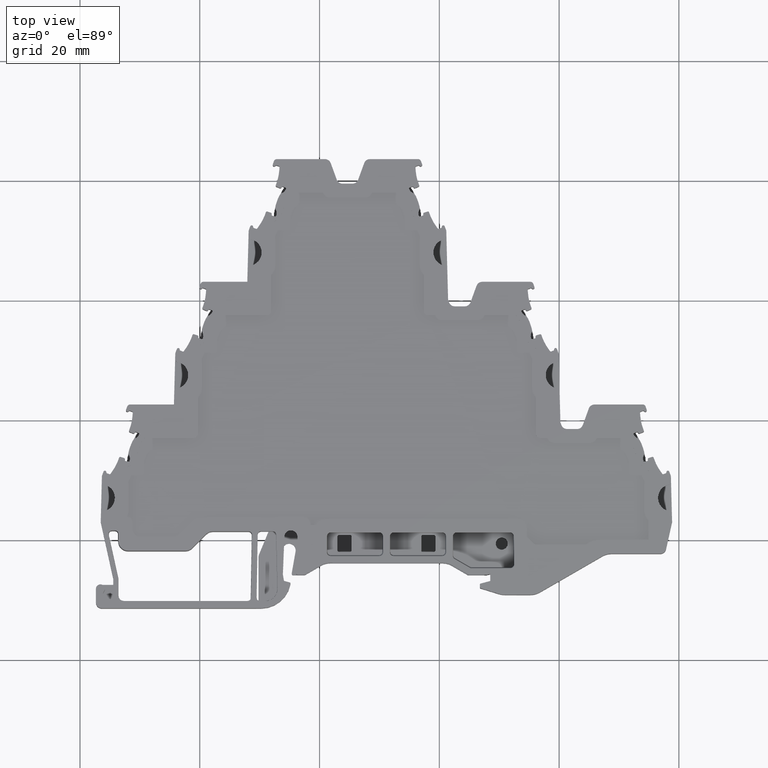
[diagram: clean part render]
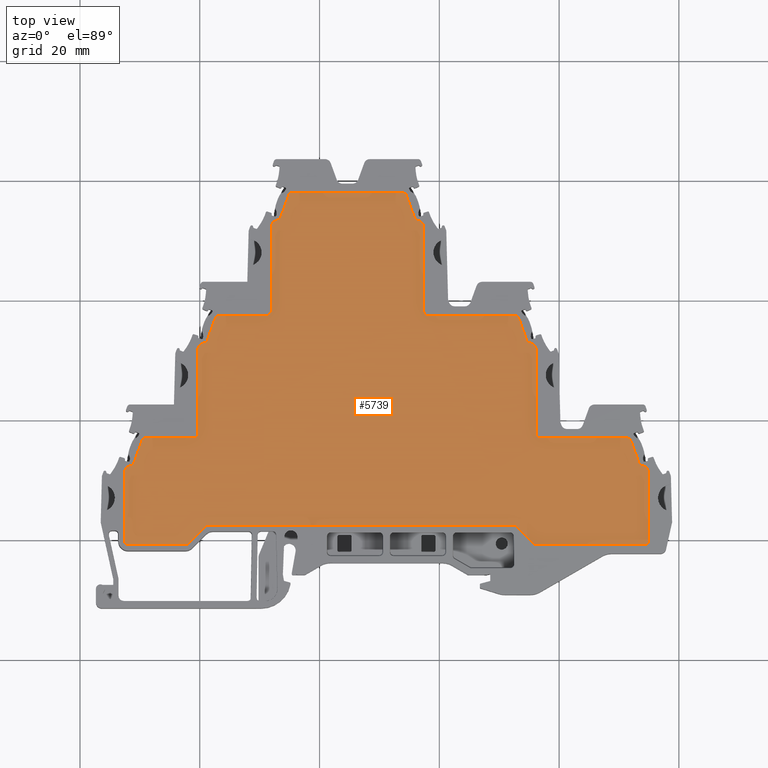
[diagram: same view with one face highlighted and labeled with its STEP entity id]
A machine part, top view. The second image highlights one B-rep face of the part: STEP entity #5739.
In plain terms, the highlighted planar face has unit normal (0, 0, 1).
Its self-contained STEP definition (entity closure, byte-faithful):
#59 = DIRECTION ( 'NONE',  ( 1.000000000000000000, 0.000000000000000000, 0.000000000000000000 ) ) ;
#106 = EDGE_CURVE ( 'NONE', #9751, #30691, #5335, .T. ) ;
#178 = CARTESIAN_POINT ( 'NONE',  ( 1228.977222510818137, 772.8129094211374195, 5.799999999999999822 ) ) ;
#241 = CARTESIAN_POINT ( 'NONE',  ( 1252.986340739400703, 813.3990832987889235, 5.799999999999999822 ) ) ;
#445 = CARTESIAN_POINT ( 'NONE',  ( 1237.604953167799977, 759.8020790783040184, 5.799999999999999822 ) ) ;
#509 = CIRCLE ( 'NONE', #27018, 0.6061088074535980752 ) ;
#634 = DIRECTION ( 'NONE',  ( 1.000000000000000000, -0.000000000000000000, -0.000000000000000000 ) ) ;
#737 = VECTOR ( 'NONE', #32637, 1000.000000000000000 ) ;
#783 = VERTEX_POINT ( 'NONE', #31307 ) ;
#800 = DIRECTION ( 'NONE',  ( 0.000000000000000000, 0.000000000000000000, 1.000000000000000000 ) ) ;
#802 = CARTESIAN_POINT ( 'NONE',  ( 1296.156833746017355, 777.6166814765280151, 5.799999999999999822 ) ) ;
#1189 = CARTESIAN_POINT ( 'NONE',  ( 1292.447555808184006, 762.4437863707485121, 5.799999999999999822 ) ) ;
#1218 = CIRCLE ( 'NONE', #13842, 0.5938911925462697639 ) ;
#1227 = AXIS2_PLACEMENT_3D ( 'NONE', #7390, #8133, #16265 ) ;
#1332 = CARTESIAN_POINT ( 'NONE',  ( 1277.406816198423257, 812.2007317726360043, 5.799999999999999822 ) ) ;
#1394 = EDGE_CURVE ( 'NONE', #4185, #26352, #25839, .T. ) ;
#1422 = EDGE_CURVE ( 'NONE', #22260, #25368, #29730, .T. ) ;
#1531 = CARTESIAN_POINT ( 'NONE',  ( 1228.486396052494456, 772.4259606854730009, 5.799999999999999822 ) ) ;
#1644 = VERTEX_POINT ( 'NONE', #28568 ) ;
#1660 = EDGE_CURVE ( 'NONE', #30691, #31961, #34407, .T. ) ;
#1951 = AXIS2_PLACEMENT_3D ( 'NONE', #3254, #3643, #23428 ) ;
#1979 = ORIENTED_EDGE ( 'NONE', *, *, #6525, .T. ) ;
#2184 = EDGE_CURVE ( 'NONE', #24756, #5466, #24228, .T. ) ;
#2193 = EDGE_CURVE ( 'NONE', #25309, #24476, #23026, .T. ) ;
#2236 = EDGE_CURVE ( 'NONE', #31854, #3433, #12208, .T. ) ;
#2375 = VERTEX_POINT ( 'NONE', #15868 ) ;
#2425 = EDGE_CURVE ( 'NONE', #21752, #16617, #28694, .T. ) ;
#2680 = CARTESIAN_POINT ( 'NONE',  ( 1293.209353774605688, 797.1105442044454321, 5.799999999999999822 ) ) ;
#2753 = CARTESIAN_POINT ( 'NONE',  ( 1253.477167197724384, 813.7860320344544789, 5.799999999999999822 ) ) ;
#2810 = CARTESIAN_POINT ( 'NONE',  ( 1275.846453533595650, 813.7860320344544789, 5.799999999999999822 ) ) ;
#2823 = ORIENTED_EDGE ( 'NONE', *, *, #28218, .T. ) ;
#2885 = DIRECTION ( 'NONE',  ( 0.7071067811864930608, -0.7071067811866019737, -0.000000000000000000 ) ) ;
#2919 = LINE ( 'NONE', #8572, #11068 ) ;
#3069 = LINE ( 'NONE', #31889, #5186 ) ;
#3230 = DIRECTION ( 'NONE',  ( -0.000000000000000000, -0.000000000000000000, -1.000000000000000000 ) ) ;
#3244 = VERTEX_POINT ( 'NONE', #36995 ) ;
#3254 = CARTESIAN_POINT ( 'NONE',  ( 1240.669119683108192, 793.5025934786519883, 5.799999999999999822 ) ) ;
#3268 = ORIENTED_EDGE ( 'NONE', *, *, #33676, .T. ) ;
#3288 = CIRCLE ( 'NONE', #34561, 0.6061088074533760306 ) ;
#3320 = VERTEX_POINT ( 'NONE', #9121 ) ;
#3433 = VERTEX_POINT ( 'NONE', #23796 ) ;
#3467 = DIRECTION ( 'NONE',  ( 1.000000000000000000, 0.000000000000000000, 0.000000000000000000 ) ) ;
#3643 = DIRECTION ( 'NONE',  ( -0.000000000000000000, -0.000000000000000000, -1.000000000000000000 ) ) ;
#3781 = DIRECTION ( 'NONE',  ( -0.000000000000000000, -0.000000000000000000, -1.000000000000000000 ) ) ;
#3783 = EDGE_CURVE ( 'NONE', #3244, #6837, #1218, .T. ) ;
#3798 = LINE ( 'NONE', #1332, #4991 ) ;
#3974 = LINE ( 'NONE', #23207, #17272 ) ;
#4154 = CARTESIAN_POINT ( 'NONE',  ( 1278.000707390953949, 797.5093515906395396, 5.799999999999999822 ) ) ;
#4185 = VERTEX_POINT ( 'NONE', #11299 ) ;
#4278 = CARTESIAN_POINT ( 'NONE',  ( 1230.364339817401969, 776.6239828977874140, 5.800000000000000711 ) ) ;
#4319 = VECTOR ( 'NONE', #27441, 1000.000000000000000 ) ;
#4455 = CARTESIAN_POINT ( 'NONE',  ( 1292.447555808184006, 762.4437863707485121, 5.799999999999999822 ) ) ;
#4471 = EDGE_CURVE ( 'NONE', #24476, #31854, #16319, .T. ) ;
#4569 = ORIENTED_EDGE ( 'NONE', *, *, #24828, .T. ) ;
#4622 = CARTESIAN_POINT ( 'NONE',  ( 1255.433840478042157, 817.3898040898441195, 5.799999999999999822 ) ) ;
#4710 = ORIENTED_EDGE ( 'NONE', *, *, #22227, .T. ) ;
#4987 = CARTESIAN_POINT ( 'NONE',  ( 1296.750724938563962, 777.6166814765280151, 5.799999999999999822 ) ) ;
#4991 = VECTOR ( 'NONE', #26792, 1000.000000000000000 ) ;
#5076 = ORIENTED_EDGE ( 'NONE', *, *, #1660, .T. ) ;
#5186 = VECTOR ( 'NONE', #2885, 1000.000000000000114 ) ;
#5335 = CIRCLE ( 'NONE', #20369, 0.6061088074533760306 ) ;
#5365 = DIRECTION ( 'NONE',  ( -0.000000000000000000, -0.000000000000000000, -1.000000000000000000 ) ) ;
#5398 = LINE ( 'NONE', #22338, #13110 ) ;
#5418 = CARTESIAN_POINT ( 'NONE',  ( 1276.200707390969910, 812.2007317726319116, 5.799999999999999822 ) ) ;
#5422 = VERTEX_POINT ( 'NONE', #31427 ) ;
#5437 = ORIENTED_EDGE ( 'NONE', *, *, #2236, .T. ) ;
#5448 = CARTESIAN_POINT ( 'NONE',  ( 1253.477167197724384, 813.7860320344544789, 5.799999999999999822 ) ) ;
#5466 = VERTEX_POINT ( 'NONE', #25968 ) ;
#5739 = ADVANCED_FACE ( 'NONE', ( #21399 ), #32899, .T. ) ;
#5770 = CARTESIAN_POINT ( 'NONE',  ( 1296.156833746017355, 791.7141704659779862, 5.799999999999999822 ) ) ;
#5895 = EDGE_LOOP ( 'NONE', ( #31200, #25181, #36941, #26330, #36713, #15459, #5437, #23632, #32617, #12989, #8518, #28811, #19432, #33913, #26450, #14534, #31669, #31105, #31263, #19804, #27427, #1979, #36953, #20396, #30875, #15093, #31647, #9622, #5076, #3268, #14727, #23138, #26245, #10768, #27139, #35426, #6864, #17334, #4710, #21304, #32856, #27022, #4569, #21071, #7153, #10405, #12497, #2823, #13903, #6597 ) ) ;
#5904 = CARTESIAN_POINT ( 'NONE',  ( 1296.192428182929689, 759.8020790783029952, 5.799999999999999822 ) ) ;
#5975 = AXIS2_PLACEMENT_3D ( 'NONE', #34033, #20090, #19349 ) ;
#6043 = EDGE_CURVE ( 'NONE', #783, #19958, #14823, .T. ) ;
#6096 = LINE ( 'NONE', #6474, #9913 ) ;
#6401 = EDGE_CURVE ( 'NONE', #16617, #25309, #3069, .T. ) ;
#6474 = CARTESIAN_POINT ( 'NONE',  ( 1283.213212084918950, 793.5460292671530169, 5.799999999999999822 ) ) ;
#6525 = EDGE_CURVE ( 'NONE', #28316, #14440, #3798, .T. ) ;
#6597 = ORIENTED_EDGE ( 'NONE', *, *, #7241, .T. ) ;
#6616 = VERTEX_POINT ( 'NONE', #10019 ) ;
#6682 = DIRECTION ( 'NONE',  ( 1.000000000000000000, 0.000000000000000000, 0.000000000000000000 ) ) ;
#6771 = DIRECTION ( 'NONE',  ( 1.000000000000000000, -1.869404763871029817E-13, 0.000000000000000000 ) ) ;
#6780 = AXIS2_PLACEMENT_3D ( 'NONE', #31721, #800, #59 ) ;
#6837 = VERTEX_POINT ( 'NONE', #14518 ) ;
#6840 = CARTESIAN_POINT ( 'NONE',  ( 1228.622968653480029, 771.2276091593529372, 5.799999999999999822 ) ) ;
#6864 = ORIENTED_EDGE ( 'NONE', *, *, #2184, .T. ) ;
#6915 = DIRECTION ( 'NONE',  ( -3.886814937260330878E-13, -1.000000000000000000, -0.000000000000000000 ) ) ;
#6989 = VERTEX_POINT ( 'NONE', #23918 ) ;
#7100 = DIRECTION ( 'NONE',  ( 0.000000000000000000, 0.000000000000000000, 1.000000000000000000 ) ) ;
#7153 = ORIENTED_EDGE ( 'NONE', *, *, #28068, .T. ) ;
#7236 = CARTESIAN_POINT ( 'NONE',  ( 1276.337279991911601, 813.3990832987279873, 5.799999999999999822 ) ) ;
#7241 = EDGE_CURVE ( 'NONE', #28952, #28440, #26853, .T. ) ;
#7390 = CARTESIAN_POINT ( 'NONE',  ( 1292.639797800872202, 796.9032427831858740, 5.799999999999999822 ) ) ;
#7442 = DIRECTION ( 'NONE',  ( 0.000000000000000000, 0.000000000000000000, 1.000000000000000000 ) ) ;
#7483 = CARTESIAN_POINT ( 'NONE',  ( 1238.033536815687285, 759.3734954304167104, 5.799999999999999822 ) ) ;
#7520 = DIRECTION ( 'NONE',  ( -0.000000000000000000, -0.000000000000000000, -1.000000000000000000 ) ) ;
#7648 = CARTESIAN_POINT ( 'NONE',  ( 1239.172940996895932, 777.0227902839816352, 5.799999999999999822 ) ) ;
#7699 = EDGE_CURVE ( 'NONE', #6837, #36470, #30180, .T. ) ;
#7784 = CARTESIAN_POINT ( 'NONE',  ( 1273.889780253278104, 817.3898040898441195, 5.799999999999999822 ) ) ;
#7800 = AXIS2_PLACEMENT_3D ( 'NONE', #5418, #32292, #9302 ) ;
#8133 = DIRECTION ( 'NONE',  ( 0.000000000000000000, 0.000000000000000000, 1.000000000000000000 ) ) ;
#8304 = DIRECTION ( 'NONE',  ( 1.000000000000000000, 0.000000000000000000, 0.000000000000000000 ) ) ;
#8320 = VECTOR ( 'NONE', #22684, 1000.000000000000114 ) ;
#8402 = CARTESIAN_POINT ( 'NONE',  ( 1254.864284504308216, 817.5971055111043597, 5.799999999999999822 ) ) ;
#8518 = ORIENTED_EDGE ( 'NONE', *, *, #23990, .T. ) ;
#8572 = CARTESIAN_POINT ( 'NONE',  ( 1239.172940996895932, 817.9959128972975577, 5.799999999999999822 ) ) ;
#8818 = CARTESIAN_POINT ( 'NONE',  ( 1277.406816198423257, 812.2007317726360043, 5.799999999999998934 ) ) ;
#8859 = VERTEX_POINT ( 'NONE', #241 ) ;
#8903 = VERTEX_POINT ( 'NONE', #26967 ) ;
#8954 = VERTEX_POINT ( 'NONE', #36534 ) ;
#9012 = CIRCLE ( 'NONE', #31264, 0.5938911925464918085 ) ;
#9038 = AXIS2_PLACEMENT_3D ( 'NONE', #29049, #3230, #11703 ) ;
#9121 = CARTESIAN_POINT ( 'NONE',  ( 1278.000707390953949, 797.5093515906395396, 5.799999999999999822 ) ) ;
#9140 = CARTESIAN_POINT ( 'NONE',  ( 1239.072940996896023, 777.6166814765280151, 5.799999999999999822 ) ) ;
#9302 = DIRECTION ( 'NONE',  ( 1.000000000000000000, 0.000000000000000000, 0.000000000000000000 ) ) ;
#9456 = VERTEX_POINT ( 'NONE', #31029 ) ;
#9487 = DIRECTION ( 'NONE',  ( 0.000000000000000000, 0.000000000000000000, 1.000000000000000000 ) ) ;
#9621 = EDGE_CURVE ( 'NONE', #3433, #16641, #29528, .T. ) ;
#9622 = ORIENTED_EDGE ( 'NONE', *, *, #106, .T. ) ;
#9675 = VECTOR ( 'NONE', #22704, 1000.000000000000000 ) ;
#9751 = VERTEX_POINT ( 'NONE', #18213 ) ;
#9913 = VECTOR ( 'NONE', #15159, 1000.000000000000114 ) ;
#10002 = EDGE_CURVE ( 'NONE', #16974, #19297, #24380, .T. ) ;
#10003 = CIRCLE ( 'NONE', #17840, 0.5938911925331691322 ) ;
#10019 = CARTESIAN_POINT ( 'NONE',  ( 1242.614312160854070, 797.1105442044454321, 5.799999999999999822 ) ) ;
#10126 = EDGE_CURVE ( 'NONE', #9751, #2375, #2919, .T. ) ;
#10173 = CARTESIAN_POINT ( 'NONE',  ( 1314.300742486188028, 759.1959702708504665, 5.799999999999999822 ) ) ;
#10405 = ORIENTED_EDGE ( 'NONE', *, *, #1422, .T. ) ;
#10542 = CARTESIAN_POINT ( 'NONE',  ( 1311.389815348476077, 777.0227902839816352, 5.799999999999999822 ) ) ;
#10768 = ORIENTED_EDGE ( 'NONE', *, *, #7699, .T. ) ;
#10824 = AXIS2_PLACEMENT_3D ( 'NONE', #6840, #29841, #18707 ) ;
#10906 = CARTESIAN_POINT ( 'NONE',  ( 1228.419147339654273, 773.0160321719939702, 5.799999999999999822 ) ) ;
#11068 = VECTOR ( 'NONE', #634, 1000.000000000000000 ) ;
#11099 = EDGE_CURVE ( 'NONE', #19958, #13919, #24407, .T. ) ;
#11192 = CARTESIAN_POINT ( 'NONE',  ( 1230.933895791135910, 776.4166814765280833, 5.799999999999999822 ) ) ;
#11299 = CARTESIAN_POINT ( 'NONE',  ( 1295.087297539505926, 792.9125219920689460, 5.799999999999999822 ) ) ;
#11357 = DIRECTION ( 'NONE',  ( 1.000000000000000000, -1.831722309546132092E-13, 0.000000000000000000 ) ) ;
#11703 = DIRECTION ( 'NONE',  ( 1.000000000000000000, 1.869404763871029817E-13, 0.000000000000000000 ) ) ;
#11898 = CARTESIAN_POINT ( 'NONE',  ( 1251.322913340350169, 798.1032427831860332, 5.799999999999999822 ) ) ;
#11940 = DIRECTION ( 'NONE',  ( -0.000000000000000000, 0.000000000000000000, 1.000000000000000000 ) ) ;
#11968 = CARTESIAN_POINT ( 'NONE',  ( 1240.929881053011513, 762.2698396677386654, 5.799999999999999822 ) ) ;
#12208 = CIRCLE ( 'NONE', #6780, 0.6061088074531539860 ) ;
#12302 = CARTESIAN_POINT ( 'NONE',  ( 1295.763844535044655, 759.3734954304167104, 5.799999999999999822 ) ) ;
#12304 = EDGE_CURVE ( 'NONE', #26352, #21332, #20018, .T. ) ;
#12343 = VECTOR ( 'NONE', #34972, 1000.000000000000000 ) ;
#12389 = DIRECTION ( 'NONE',  ( 1.000000000000000000, 3.738809527740661645E-13, 0.000000000000000000 ) ) ;
#12497 = ORIENTED_EDGE ( 'NONE', *, *, #32915, .T. ) ;
#12501 = DIRECTION ( 'NONE',  ( 1.000000000000000000, 0.000000000000000000, 0.000000000000000000 ) ) ;
#12511 = DIRECTION ( 'NONE',  ( -0.000000000000000000, -0.000000000000000000, -1.000000000000000000 ) ) ;
#12531 = VERTEX_POINT ( 'NONE', #32446 ) ;
#12582 = AXIS2_PLACEMENT_3D ( 'NONE', #10906, #7520, #30515 ) ;
#12584 = CARTESIAN_POINT ( 'NONE',  ( 1295.154546252400223, 793.5025934786160633, 5.799999999999999822 ) ) ;
#12989 = ORIENTED_EDGE ( 'NONE', *, *, #26851, .T. ) ;
#13110 = VECTOR ( 'NONE', #34025, 999.9999999999998863 ) ;
#13349 = VERTEX_POINT ( 'NONE', #7236 ) ;
#13580 = AXIS2_PLACEMENT_3D ( 'NONE', #36915, #34103, #8304 ) ;
#13588 = CARTESIAN_POINT ( 'NONE',  ( 1292.447555808184006, 761.8498951782020185, 5.799999999999999822 ) ) ;
#13639 = CARTESIAN_POINT ( 'NONE',  ( 1311.959371322211837, 776.6239828977873003, 5.799999999999999822 ) ) ;
#13842 = AXIS2_PLACEMENT_3D ( 'NONE', #11898, #3781, #31682 ) ;
#13882 = CARTESIAN_POINT ( 'NONE',  ( 1239.072940996896023, 777.0227902839816352, 5.799999999999999822 ) ) ;
#13903 = ORIENTED_EDGE ( 'NONE', *, *, #20620, .T. ) ;
#13919 = VERTEX_POINT ( 'NONE', #22045 ) ;
#14054 = VERTEX_POINT ( 'NONE', #178 ) ;
#14350 = CARTESIAN_POINT ( 'NONE',  ( 1296.192428182929689, 759.1959702708495570, 5.799999999999999822 ) ) ;
#14440 = VERTEX_POINT ( 'NONE', #8818 ) ;
#14479 = AXIS2_PLACEMENT_3D ( 'NONE', #20897, #17520, #32393 ) ;
#14518 = CARTESIAN_POINT ( 'NONE',  ( 1251.322913340350169, 797.5093515906395396, 5.799999999999999822 ) ) ;
#14534 = ORIENTED_EDGE ( 'NONE', *, *, #20530, .T. ) ;
#14545 = VERTEX_POINT ( 'NONE', #4278 ) ;
#14576 = DIRECTION ( 'NONE',  ( 1.000000000000000000, 0.000000000000000000, 0.000000000000000000 ) ) ;
#14725 = CARTESIAN_POINT ( 'NONE',  ( 1239.666832189442403, 777.6166814765280151, 5.799999999999999822 ) ) ;
#14727 = ORIENTED_EDGE ( 'NONE', *, *, #24748, .T. ) ;
#14823 = CIRCLE ( 'NONE', #37053, 0.5938911925464918085 ) ;
#14899 = CIRCLE ( 'NONE', #29347, 0.6061088074535980752 ) ;
#14917 = CARTESIAN_POINT ( 'NONE',  ( 1228.022968653443968, 759.8020790783040184, 5.799999999999999822 ) ) ;
#14991 = CIRCLE ( 'NONE', #12582, 0.5938911925462697639 ) ;
#15017 = DIRECTION ( 'NONE',  ( -0.000000000000000000, -0.000000000000000000, -1.000000000000000000 ) ) ;
#15093 = ORIENTED_EDGE ( 'NONE', *, *, #34809, .F. ) ;
#15123 = LINE ( 'NONE', #14725, #32284 ) ;
#15159 = DIRECTION ( 'NONE',  ( 0.3420201434306171517, -0.9396926207477103166, -0.000000000000000000 ) ) ;
#15294 = CARTESIAN_POINT ( 'NONE',  ( 1227.416859845994850, 771.2276091593189449, 5.799999999999999822 ) ) ;
#15452 = EDGE_CURVE ( 'NONE', #36470, #6616, #20776, .T. ) ;
#15459 = ORIENTED_EDGE ( 'NONE', *, *, #4471, .T. ) ;
#15659 = CIRCLE ( 'NONE', #9038, 0.5938911925773560085 ) ;
#15868 = CARTESIAN_POINT ( 'NONE',  ( 1273.889780253278104, 817.9959128972975577, 5.799999999999999822 ) ) ;
#15971 = AXIS2_PLACEMENT_3D ( 'NONE', #33445, #7100, #36273 ) ;
#16258 = CARTESIAN_POINT ( 'NONE',  ( 1237.604953167799977, 759.1959702708504665, 5.799999999999999822 ) ) ;
#16265 = DIRECTION ( 'NONE',  ( 1.000000000000000000, 0.000000000000000000, 0.000000000000000000 ) ) ;
#16319 = LINE ( 'NONE', #22320, #9675 ) ;
#16336 = EDGE_CURVE ( 'NONE', #3320, #28316, #10003, .T. ) ;
#16617 = VERTEX_POINT ( 'NONE', #32940 ) ;
#16641 = VERTEX_POINT ( 'NONE', #36132 ) ;
#16974 = VERTEX_POINT ( 'NONE', #32357 ) ;
#17129 = VERTEX_POINT ( 'NONE', #18407 ) ;
#17272 = VECTOR ( 'NONE', #34888, 1000.000000000000000 ) ;
#17334 = ORIENTED_EDGE ( 'NONE', *, *, #29701, .T. ) ;
#17520 = DIRECTION ( 'NONE',  ( 0.000000000000000000, 0.000000000000000000, 1.000000000000000000 ) ) ;
#17519 = AXIS2_PLACEMENT_3D ( 'NONE', #7784, #25679, #11357 ) ;
#17636 = DIRECTION ( 'NONE',  ( 0.7071067811865204833, 0.7071067811865745512, -0.000000000000000000 ) ) ;
#17840 = AXIS2_PLACEMENT_3D ( 'NONE', #27028, #12511, #23999 ) ;
#18121 = EDGE_CURVE ( 'NONE', #28440, #22369, #22591, .T. ) ;
#18213 = CARTESIAN_POINT ( 'NONE',  ( 1255.433840478042157, 817.9959128972975577, 5.799999999999999822 ) ) ;
#18365 = EDGE_CURVE ( 'NONE', #13349, #19623, #33456, .T. ) ;
#18407 = CARTESIAN_POINT ( 'NONE',  ( 1251.916804532902006, 812.2007317726349811, 5.799999999999999822 ) ) ;
#18707 = DIRECTION ( 'NONE',  ( 1.000000000000000000, 0.000000000000000000, 0.000000000000000000 ) ) ;
#18851 = CARTESIAN_POINT ( 'NONE',  ( 1241.349825542545886, 762.4437863707485121, 5.799999999999999822 ) ) ;
#19187 = EDGE_CURVE ( 'NONE', #13919, #14545, #14899, .T. ) ;
#19297 = VERTEX_POINT ( 'NONE', #802 ) ;
#19336 = DIRECTION ( 'NONE',  ( -0.000000000000000000, -0.000000000000000000, -1.000000000000000000 ) ) ;
#19349 = DIRECTION ( 'NONE',  ( 1.000000000000000000, 0.000000000000000000, 0.000000000000000000 ) ) ;
#19401 = CARTESIAN_POINT ( 'NONE',  ( 1240.872940996934176, 791.7141704660119785, 5.799999999999999822 ) ) ;
#19432 = ORIENTED_EDGE ( 'NONE', *, *, #35475, .F. ) ;
#19526 = CIRCLE ( 'NONE', #32758, 1.206108807456196530 ) ;
#19528 = DIRECTION ( 'NONE',  ( -0.000000000000000000, 1.000000000000000000, -0.000000000000000000 ) ) ;
#19623 = VERTEX_POINT ( 'NONE', #2810 ) ;
#19804 = ORIENTED_EDGE ( 'NONE', *, *, #28422, .T. ) ;
#19820 = CIRCLE ( 'NONE', #7800, 1.206108807456418575 ) ;
#19848 = VECTOR ( 'NONE', #25282, 1000.000000000000000 ) ;
#19917 = CARTESIAN_POINT ( 'NONE',  ( 1241.227194854270465, 793.2994707277954376, 5.799999999999999822 ) ) ;
#19923 = EDGE_CURVE ( 'NONE', #19297, #6989, #34037, .T. ) ;
#19958 = VERTEX_POINT ( 'NONE', #13882 ) ;
#20018 = LINE ( 'NONE', #2680, #21411 ) ;
#20090 = DIRECTION ( 'NONE',  ( 0.000000000000000000, 0.000000000000000000, 1.000000000000000000 ) ) ;
#20161 = AXIS2_PLACEMENT_3D ( 'NONE', #24259, #32935, #30121 ) ;
#20369 = AXIS2_PLACEMENT_3D ( 'NONE', #4622, #7442, #22126 ) ;
#20396 = ORIENTED_EDGE ( 'NONE', *, *, #18365, .T. ) ;
#20530 = EDGE_CURVE ( 'NONE', #6989, #4185, #19526, .T. ) ;
#20541 = EDGE_CURVE ( 'NONE', #12531, #19623, #6096, .T. ) ;
#20563 = AXIS2_PLACEMENT_3D ( 'NONE', #19401, #33721, #30894 ) ;
#20620 = EDGE_CURVE ( 'NONE', #8903, #28952, #3288, .T. ) ;
#20648 = DIRECTION ( 'NONE',  ( -0.3420201434305731314, -0.9396926207477263038, -0.000000000000000000 ) ) ;
#20735 = LINE ( 'NONE', #4154, #27120 ) ;
#20776 = CIRCLE ( 'NONE', #20161, 0.6061088074535980752 ) ;
#20864 = AXIS2_PLACEMENT_3D ( 'NONE', #13588, #27739, #22433 ) ;
#20897 = CARTESIAN_POINT ( 'NONE',  ( 1313.700742486167883, 771.2276091593159890, 5.799999999999999822 ) ) ;
#20943 = VECTOR ( 'NONE', #21233, 1000.000000000000000 ) ;
#21000 = DIRECTION ( 'NONE',  ( -0.000000000000000000, -0.000000000000000000, -1.000000000000000000 ) ) ;
#21040 = CARTESIAN_POINT ( 'NONE',  ( 1293.209353774605688, 797.1105442044454321, 5.799999999999999822 ) ) ;
#21071 = ORIENTED_EDGE ( 'NONE', *, *, #27438, .T. ) ;
#21099 = CARTESIAN_POINT ( 'NONE',  ( 1276.404528704804079, 813.9891547852739677, 5.799999999999999822 ) ) ;
#21233 = DIRECTION ( 'NONE',  ( 1.000000000000000000, -0.000000000000000000, -0.000000000000000000 ) ) ;
#21264 = VERTEX_POINT ( 'NONE', #10542 ) ;
#21304 = ORIENTED_EDGE ( 'NONE', *, *, #6043, .T. ) ;
#21332 = VERTEX_POINT ( 'NONE', #21040 ) ;
#21399 = FACE_OUTER_BOUND ( 'NONE', #5895, .T. ) ;
#21411 = VECTOR ( 'NONE', #25870, 999.9999999999998863 ) ;
#21752 = VERTEX_POINT ( 'NONE', #1189 ) ;
#22021 = AXIS2_PLACEMENT_3D ( 'NONE', #21099, #19336, #6771 ) ;
#22045 = CARTESIAN_POINT ( 'NONE',  ( 1230.933895791135910, 777.0227902839816352, 5.799999999999999822 ) ) ;
#22126 = DIRECTION ( 'NONE',  ( 1.000000000000000000, 0.000000000000000000, 0.000000000000000000 ) ) ;
#22227 = EDGE_CURVE ( 'NONE', #30646, #783, #15123, .T. ) ;
#22260 = VERTEX_POINT ( 'NONE', #15294 ) ;
#22308 = CIRCLE ( 'NONE', #24122, 0.6061088074535980752 ) ;
#22320 = CARTESIAN_POINT ( 'NONE',  ( 1314.300742486187801, 759.1959702708504665, 5.799999999999999822 ) ) ;
#22326 = EDGE_CURVE ( 'NONE', #17129, #3244, #3974, .T. ) ;
#22338 = CARTESIAN_POINT ( 'NONE',  ( 1241.227194854270465, 793.2994707277954376, 5.799999999999999822 ) ) ;
#22369 = VERTEX_POINT ( 'NONE', #18851 ) ;
#22433 = DIRECTION ( 'NONE',  ( 1.000000000000000000, -7.477619055872727547E-13, 0.000000000000000000 ) ) ;
#22483 = DIRECTION ( 'NONE',  ( 1.000000000000000000, 0.000000000000000000, 0.000000000000000000 ) ) ;
#22591 = CIRCLE ( 'NONE', #13580, 0.5938911925460477192 ) ;
#22684 = DIRECTION ( 'NONE',  ( -0.3420201434306171517, 0.9396926207477103166, -0.000000000000000000 ) ) ;
#22704 = DIRECTION ( 'NONE',  ( 1.000000000000000000, 2.452405024636690480E-14, -0.000000000000000000 ) ) ;
#22818 = CIRCLE ( 'NONE', #5975, 1.206108807484618239 ) ;
#23026 = CIRCLE ( 'NONE', #32053, 0.6061088074535980752 ) ;
#23138 = ORIENTED_EDGE ( 'NONE', *, *, #22326, .T. ) ;
#23207 = CARTESIAN_POINT ( 'NONE',  ( 1251.916804532896549, 798.1032427831860332, 5.799999999999999822 ) ) ;
#23247 = DIRECTION ( 'NONE',  ( 0.000000000000000000, 0.000000000000000000, 1.000000000000000000 ) ) ;
#23296 = CARTESIAN_POINT ( 'NONE',  ( 1314.906851293623504, 771.2276091593199681, 5.799999999999999822 ) ) ;
#23398 = EDGE_CURVE ( 'NONE', #22369, #21752, #29729, .T. ) ;
#23428 = DIRECTION ( 'NONE',  ( 1.000000000000000000, 0.000000000000000000, 0.000000000000000000 ) ) ;
#23553 = EDGE_CURVE ( 'NONE', #6616, #24756, #5398, .T. ) ;
#23632 = ORIENTED_EDGE ( 'NONE', *, *, #9621, .T. ) ;
#23682 = VECTOR ( 'NONE', #17636, 1000.000000000000114 ) ;
#23746 = DIRECTION ( 'NONE',  ( -1.000000000000000000, 0.000000000000000000, -0.000000000000000000 ) ) ;
#23757 = VECTOR ( 'NONE', #27803, 1000.000000000000000 ) ;
#23796 = CARTESIAN_POINT ( 'NONE',  ( 1314.906851293623504, 759.8020790783029952, 5.799999999999998934 ) ) ;
#23850 = CARTESIAN_POINT ( 'NONE',  ( 1228.977222510818137, 772.8129094211374195, 5.799999999999999822 ) ) ;
#23918 = CARTESIAN_POINT ( 'NONE',  ( 1296.156833746017355, 791.7141704659779862, 5.799999999999998934 ) ) ;
#23990 = EDGE_CURVE ( 'NONE', #1644, #8954, #24936, .T. ) ;
#23999 = DIRECTION ( 'NONE',  ( 1.000000000000000000, 0.000000000000000000, 0.000000000000000000 ) ) ;
#24030 = VECTOR ( 'NONE', #6915, 1000.000000000000000 ) ;
#24122 = AXIS2_PLACEMENT_3D ( 'NONE', #30773, #30942, #28324 ) ;
#24205 = VERTEX_POINT ( 'NONE', #1531 ) ;
#24228 = CIRCLE ( 'NONE', #1951, 0.5938911925464918085 ) ;
#24259 = CARTESIAN_POINT ( 'NONE',  ( 1243.183868134589829, 796.9032427831858740, 5.799999999999999822 ) ) ;
#24380 = CIRCLE ( 'NONE', #27322, 0.5938911925464918085 ) ;
#24407 = LINE ( 'NONE', #24599, #23757 ) ;
#24476 = VERTEX_POINT ( 'NONE', #14350 ) ;
#24599 = CARTESIAN_POINT ( 'NONE',  ( 1230.933895791135910, 777.0227902839816352, 5.799999999999999822 ) ) ;
#24748 = EDGE_CURVE ( 'NONE', #8859, #17129, #22818, .T. ) ;
#24756 = VERTEX_POINT ( 'NONE', #19917 ) ;
#24828 = EDGE_CURVE ( 'NONE', #14545, #14054, #32334, .T. ) ;
#24936 = LINE ( 'NONE', #13639, #8320 ) ;
#25181 = ORIENTED_EDGE ( 'NONE', *, *, #23398, .T. ) ;
#25269 = CIRCLE ( 'NONE', #10824, 1.206108807484618239 ) ;
#25282 = DIRECTION ( 'NONE',  ( 1.000000000000000000, -0.000000000000000000, -0.000000000000000000 ) ) ;
#25309 = VERTEX_POINT ( 'NONE', #12302 ) ;
#25331 = CIRCLE ( 'NONE', #17519, 0.6061088074535980752 ) ;
#25368 = VERTEX_POINT ( 'NONE', #30195 ) ;
#25679 = DIRECTION ( 'NONE',  ( -0.000000000000000000, -0.000000000000000000, -1.000000000000000000 ) ) ;
#25765 = VECTOR ( 'NONE', #19528, 1000.000000000000000 ) ;
#25839 = CIRCLE ( 'NONE', #31252, 0.5938911925775780531 ) ;
#25870 = DIRECTION ( 'NONE',  ( -0.3420201434305114585, 0.9396926207477488413, -0.000000000000000000 ) ) ;
#25954 = DIRECTION ( 'NONE',  ( 1.000000000000000000, 0.000000000000000000, 0.000000000000000000 ) ) ;
#25968 = CARTESIAN_POINT ( 'NONE',  ( 1240.736368395946783, 792.9125219921310190, 5.799999999999999822 ) ) ;
#26245 = ORIENTED_EDGE ( 'NONE', *, *, #3783, .T. ) ;
#26330 = ORIENTED_EDGE ( 'NONE', *, *, #6401, .T. ) ;
#26352 = VERTEX_POINT ( 'NONE', #36683 ) ;
#26395 = CARTESIAN_POINT ( 'NONE',  ( 1243.183868134589829, 797.5093515906395396, 5.799999999999999822 ) ) ;
#26411 = EDGE_CURVE ( 'NONE', #14440, #13349, #19820, .T. ) ;
#26450 = ORIENTED_EDGE ( 'NONE', *, *, #19923, .T. ) ;
#26467 = CARTESIAN_POINT ( 'NONE',  ( 1294.950724938561962, 791.7141704659740071, 5.799999999999999822 ) ) ;
#26792 = DIRECTION ( 'NONE',  ( -0.000000000000000000, 1.000000000000000000, -0.000000000000000000 ) ) ;
#26851 = EDGE_CURVE ( 'NONE', #5422, #1644, #15659, .T. ) ;
#26853 = LINE ( 'NONE', #11968, #23682 ) ;
#26967 = CARTESIAN_POINT ( 'NONE',  ( 1237.604953167799977, 759.1959702708504665, 5.799999999999999822 ) ) ;
#27018 = AXIS2_PLACEMENT_3D ( 'NONE', #14917, #35239, #32228 ) ;
#27022 = ORIENTED_EDGE ( 'NONE', *, *, #19187, .T. ) ;
#27028 = CARTESIAN_POINT ( 'NONE',  ( 1278.000707390957814, 798.1032427831730729, 5.799999999999999822 ) ) ;
#27120 = VECTOR ( 'NONE', #23746, 1000.000000000000000 ) ;
#27139 = ORIENTED_EDGE ( 'NONE', *, *, #15452, .T. ) ;
#27156 = CARTESIAN_POINT ( 'NONE',  ( 1240.929881053011513, 762.2698396677386654, 5.799999999999999822 ) ) ;
#27322 = AXIS2_PLACEMENT_3D ( 'NONE', #4987, #5365, #27793 ) ;
#27427 = ORIENTED_EDGE ( 'NONE', *, *, #16336, .T. ) ;
#27438 = EDGE_CURVE ( 'NONE', #14054, #24205, #14991, .T. ) ;
#27441 = DIRECTION ( 'NONE',  ( 1.000000000000000000, -0.000000000000000000, -0.000000000000000000 ) ) ;
#27703 = CIRCLE ( 'NONE', #1227, 0.6061088074535980752 ) ;
#27739 = DIRECTION ( 'NONE',  ( -0.000000000000000000, -0.000000000000000000, -1.000000000000000000 ) ) ;
#27793 = DIRECTION ( 'NONE',  ( 1.000000000000000000, 0.000000000000000000, 0.000000000000000000 ) ) ;
#27803 = DIRECTION ( 'NONE',  ( -1.000000000000000000, 0.000000000000000000, -0.000000000000000000 ) ) ;
#28068 = EDGE_CURVE ( 'NONE', #24205, #22260, #25269, .T. ) ;
#28218 = EDGE_CURVE ( 'NONE', #9456, #8903, #30565, .T. ) ;
#28316 = VERTEX_POINT ( 'NONE', #31497 ) ;
#28324 = DIRECTION ( 'NONE',  ( 1.000000000000000000, 0.000000000000000000, 0.000000000000000000 ) ) ;
#28422 = EDGE_CURVE ( 'NONE', #35000, #3320, #20735, .T. ) ;
#28440 = VERTEX_POINT ( 'NONE', #27156 ) ;
#28568 = CARTESIAN_POINT ( 'NONE',  ( 1313.346488628795669, 772.8129094211375332, 5.800000000000000711 ) ) ;
#28694 = CIRCLE ( 'NONE', #20864, 0.5938911925464918085 ) ;
#28782 = CARTESIAN_POINT ( 'NONE',  ( 1252.919092026560065, 813.9891547853110296, 5.799999999999999822 ) ) ;
#28811 = ORIENTED_EDGE ( 'NONE', *, *, #34852, .F. ) ;
#28931 = CARTESIAN_POINT ( 'NONE',  ( 1239.666832189447405, 791.7141704659770767, 5.799999999999999822 ) ) ;
#28952 = VERTEX_POINT ( 'NONE', #7483 ) ;
#29049 = CARTESIAN_POINT ( 'NONE',  ( 1313.904563800003871, 773.0160321719580452, 5.799999999999999822 ) ) ;
#29347 = AXIS2_PLACEMENT_3D ( 'NONE', #11192, #33980, #22483 ) ;
#29528 = LINE ( 'NONE', #23296, #12343 ) ;
#29701 = EDGE_CURVE ( 'NONE', #5466, #30646, #32592, .T. ) ;
#29729 = LINE ( 'NONE', #4455, #20943 ) ;
#29730 = LINE ( 'NONE', #32723, #24030 ) ;
#29841 = DIRECTION ( 'NONE',  ( 0.000000000000000000, 0.000000000000000000, 1.000000000000000000 ) ) ;
#30121 = DIRECTION ( 'NONE',  ( 1.000000000000000000, 0.000000000000000000, 0.000000000000000000 ) ) ;
#30180 = LINE ( 'NONE', #33349, #737 ) ;
#30195 = CARTESIAN_POINT ( 'NONE',  ( 1227.416859845990530, 759.8020790783040184, 5.799999999999999822 ) ) ;
#30264 = LINE ( 'NONE', #7648, #4319 ) ;
#30515 = DIRECTION ( 'NONE',  ( 1.000000000000000000, 0.000000000000000000, 0.000000000000000000 ) ) ;
#30565 = LINE ( 'NONE', #16258, #19848 ) ;
#30646 = VERTEX_POINT ( 'NONE', #28931 ) ;
#30691 = VERTEX_POINT ( 'NONE', #8402 ) ;
#30715 = CIRCLE ( 'NONE', #14479, 1.206108807456418575 ) ;
#30773 = CARTESIAN_POINT ( 'NONE',  ( 1311.389815348476077, 776.4166814765280833, 5.799999999999999822 ) ) ;
#30875 = ORIENTED_EDGE ( 'NONE', *, *, #20541, .F. ) ;
#30894 = DIRECTION ( 'NONE',  ( 1.000000000000000000, 0.000000000000000000, 0.000000000000000000 ) ) ;
#30942 = DIRECTION ( 'NONE',  ( -0.000000000000000000, -0.000000000000000000, -1.000000000000000000 ) ) ;
#31029 = CARTESIAN_POINT ( 'NONE',  ( 1228.022968653443968, 759.1959702708504665, 5.799999999999999822 ) ) ;
#31105 = ORIENTED_EDGE ( 'NONE', *, *, #12304, .T. ) ;
#31200 = ORIENTED_EDGE ( 'NONE', *, *, #18121, .T. ) ;
#31252 = AXIS2_PLACEMENT_3D ( 'NONE', #12584, #34812, #12389 ) ;
#31263 = ORIENTED_EDGE ( 'NONE', *, *, #34393, .T. ) ;
#31264 = AXIS2_PLACEMENT_3D ( 'NONE', #28782, #15017, #25954 ) ;
#31307 = CARTESIAN_POINT ( 'NONE',  ( 1239.666832189442403, 777.6166814765280151, 5.799999999999999822 ) ) ;
#31427 = CARTESIAN_POINT ( 'NONE',  ( 1313.837315087111847, 772.4259606854110416, 5.799999999999999822 ) ) ;
#31497 = CARTESIAN_POINT ( 'NONE',  ( 1277.406816198423257, 798.1032427831760288, 5.799999999999999822 ) ) ;
#31573 = DIRECTION ( 'NONE',  ( -0.3420201434305994437, -0.9396926207477166448, -0.000000000000000000 ) ) ;
#31647 = ORIENTED_EDGE ( 'NONE', *, *, #10126, .F. ) ;
#31669 = ORIENTED_EDGE ( 'NONE', *, *, #1394, .T. ) ;
#31682 = DIRECTION ( 'NONE',  ( 1.000000000000000000, -1.682464287571992717E-12, 0.000000000000000000 ) ) ;
#31721 = CARTESIAN_POINT ( 'NONE',  ( 1314.300742486169838, 759.8020790783029952, 5.799999999999999822 ) ) ;
#31854 = VERTEX_POINT ( 'NONE', #10173 ) ;
#31881 = VECTOR ( 'NONE', #20648, 1000.000000000000114 ) ;
#31885 = CARTESIAN_POINT ( 'NONE',  ( 1292.639797800872202, 797.5093515906395396, 5.799999999999999822 ) ) ;
#31889 = CARTESIAN_POINT ( 'NONE',  ( 1295.763844535044655, 759.3734954304167104, 5.799999999999999822 ) ) ;
#31961 = VERTEX_POINT ( 'NONE', #5448 ) ;
#32053 = AXIS2_PLACEMENT_3D ( 'NONE', #5904, #9487, #14576 ) ;
#32228 = DIRECTION ( 'NONE',  ( 1.000000000000000000, 0.000000000000000000, 0.000000000000000000 ) ) ;
#32284 = VECTOR ( 'NONE', #35063, 1000.000000000000000 ) ;
#32292 = DIRECTION ( 'NONE',  ( 0.000000000000000000, 0.000000000000000000, 1.000000000000000000 ) ) ;
#32334 = LINE ( 'NONE', #23850, #31881 ) ;
#32357 = CARTESIAN_POINT ( 'NONE',  ( 1296.750724938563962, 777.0227902839816352, 5.799999999999999822 ) ) ;
#32393 = DIRECTION ( 'NONE',  ( 1.000000000000000000, 0.000000000000000000, 0.000000000000000000 ) ) ;
#32446 = CARTESIAN_POINT ( 'NONE',  ( 1274.459336227011590, 817.5971055111043597, 5.799999999999999822 ) ) ;
#32592 = CIRCLE ( 'NONE', #20563, 1.206108807484618239 ) ;
#32617 = ORIENTED_EDGE ( 'NONE', *, *, #34581, .T. ) ;
#32637 = DIRECTION ( 'NONE',  ( -1.000000000000000000, 0.000000000000000000, -0.000000000000000000 ) ) ;
#32723 = CARTESIAN_POINT ( 'NONE',  ( 1227.416859845990530, 759.8020790783040184, 5.799999999999999822 ) ) ;
#32758 = AXIS2_PLACEMENT_3D ( 'NONE', #26467, #23247, #12501 ) ;
#32856 = ORIENTED_EDGE ( 'NONE', *, *, #11099, .T. ) ;
#32899 = PLANE ( 'NONE',  #15971 ) ;
#32915 = EDGE_CURVE ( 'NONE', #25368, #9456, #509, .T. ) ;
#32935 = DIRECTION ( 'NONE',  ( 0.000000000000000000, 0.000000000000000000, 1.000000000000000000 ) ) ;
#32940 = CARTESIAN_POINT ( 'NONE',  ( 1292.867500297720426, 762.2698396677386654, 5.799999999999999822 ) ) ;
#33349 = CARTESIAN_POINT ( 'NONE',  ( 1243.183868134589829, 797.5093515906395396, 5.799999999999999822 ) ) ;
#33445 = CARTESIAN_POINT ( 'NONE',  ( 1239.172940996895932, 777.5166814765281060, 5.799999999999999822 ) ) ;
#33456 = CIRCLE ( 'NONE', #22021, 0.5938911925773560085 ) ;
#33676 = EDGE_CURVE ( 'NONE', #31961, #8859, #9012, .T. ) ;
#33721 = DIRECTION ( 'NONE',  ( 0.000000000000000000, 0.000000000000000000, 1.000000000000000000 ) ) ;
#33913 = ORIENTED_EDGE ( 'NONE', *, *, #10002, .T. ) ;
#33980 = DIRECTION ( 'NONE',  ( 0.000000000000000000, 0.000000000000000000, 1.000000000000000000 ) ) ;
#34025 = DIRECTION ( 'NONE',  ( -0.3420201434305685240, -0.9396926207477279691, -0.000000000000000000 ) ) ;
#34033 = CARTESIAN_POINT ( 'NONE',  ( 1253.122913340385821, 812.2007317726699966, 5.799999999999999822 ) ) ;
#34037 = LINE ( 'NONE', #5770, #25765 ) ;
#34103 = DIRECTION ( 'NONE',  ( -0.000000000000000000, -0.000000000000000000, -1.000000000000000000 ) ) ;
#34393 = EDGE_CURVE ( 'NONE', #21332, #35000, #27703, .T. ) ;
#34407 = LINE ( 'NONE', #2753, #35276 ) ;
#34561 = AXIS2_PLACEMENT_3D ( 'NONE', #445, #11940, #3467 ) ;
#34581 = EDGE_CURVE ( 'NONE', #16641, #5422, #30715, .T. ) ;
#34809 = EDGE_CURVE ( 'NONE', #2375, #12531, #25331, .T. ) ;
#34812 = DIRECTION ( 'NONE',  ( -0.000000000000000000, -0.000000000000000000, -1.000000000000000000 ) ) ;
#34852 = EDGE_CURVE ( 'NONE', #21264, #8954, #22308, .T. ) ;
#34888 = DIRECTION ( 'NONE',  ( -3.937662322190909518E-13, -1.000000000000000000, -0.000000000000000000 ) ) ;
#34972 = DIRECTION ( 'NONE',  ( -0.000000000000000000, 1.000000000000000000, -0.000000000000000000 ) ) ;
#35000 = VERTEX_POINT ( 'NONE', #31885 ) ;
#35063 = DIRECTION ( 'NONE',  ( -3.622649336415779514E-13, -1.000000000000000000, -0.000000000000000000 ) ) ;
#35239 = DIRECTION ( 'NONE',  ( 0.000000000000000000, 0.000000000000000000, 1.000000000000000000 ) ) ;
#35276 = VECTOR ( 'NONE', #31573, 1000.000000000000114 ) ;
#35426 = ORIENTED_EDGE ( 'NONE', *, *, #23553, .T. ) ;
#35475 = EDGE_CURVE ( 'NONE', #16974, #21264, #30264, .T. ) ;
#36132 = CARTESIAN_POINT ( 'NONE',  ( 1314.906851293623504, 771.2276091593199681, 5.799999999999999822 ) ) ;
#36273 = DIRECTION ( 'NONE',  ( 1.000000000000000000, 0.000000000000000000, 0.000000000000000000 ) ) ;
#36470 = VERTEX_POINT ( 'NONE', #26395 ) ;
#36534 = CARTESIAN_POINT ( 'NONE',  ( 1311.959371322211837, 776.6239828977873003, 5.799999999999999822 ) ) ;
#36683 = CARTESIAN_POINT ( 'NONE',  ( 1294.596471081189520, 793.2994707277954376, 5.799999999999999822 ) ) ;
#36713 = ORIENTED_EDGE ( 'NONE', *, *, #2193, .T. ) ;
#36915 = CARTESIAN_POINT ( 'NONE',  ( 1241.349825542545886, 761.8498951782030417, 5.799999999999999822 ) ) ;
#36941 = ORIENTED_EDGE ( 'NONE', *, *, #2425, .T. ) ;
#36953 = ORIENTED_EDGE ( 'NONE', *, *, #26411, .T. ) ;
#36995 = CARTESIAN_POINT ( 'NONE',  ( 1251.916804532896549, 798.1032427831850100, 5.799999999999999822 ) ) ;
#37053 = AXIS2_PLACEMENT_3D ( 'NONE', #9140, #21000, #6682 ) ;